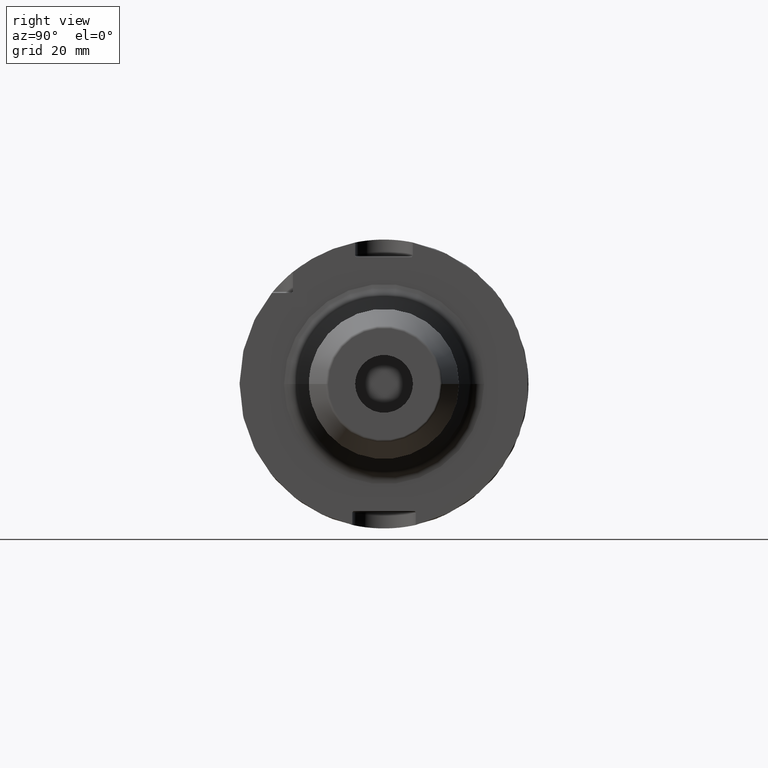
[diagram: clean part render]
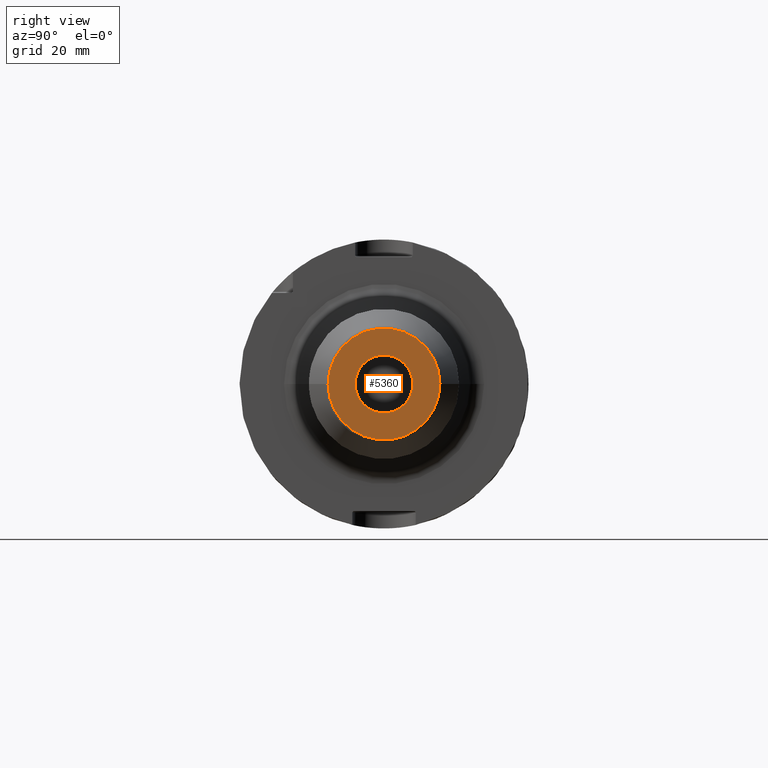
[diagram: same view with one face highlighted and labeled with its STEP entity id]
A machine part, right view. The second image highlights one B-rep face of the part: STEP entity #5360.
In plain terms, the highlighted planar face has unit normal (1, 0, 0).
Its self-contained STEP definition (entity closure, byte-faithful):
#1984=CARTESIAN_POINT('',(1.6E2,0.E0,0.E0));
#1985=DIRECTION('',(-1.E0,0.E0,0.E0));
#1986=DIRECTION('',(0.E0,1.E0,0.E0));
#1987=AXIS2_PLACEMENT_3D('',#1984,#1985,#1986);
#1989=CARTESIAN_POINT('',(1.6E2,0.E0,0.E0));
#1990=DIRECTION('',(-1.E0,0.E0,0.E0));
#1991=DIRECTION('',(0.E0,-1.E0,0.E0));
#1992=AXIS2_PLACEMENT_3D('',#1989,#1990,#1991);
#1994=CARTESIAN_POINT('',(1.6E2,0.E0,0.E0));
#1995=DIRECTION('',(1.E0,0.E0,0.E0));
#1996=DIRECTION('',(0.E0,1.E0,0.E0));
#1997=AXIS2_PLACEMENT_3D('',#1994,#1995,#1996);
#1999=CARTESIAN_POINT('',(1.6E2,0.E0,0.E0));
#2000=DIRECTION('',(1.E0,0.E0,0.E0));
#2001=DIRECTION('',(0.E0,-1.E0,0.E0));
#2002=AXIS2_PLACEMENT_3D('',#1999,#2000,#2001);
#3317=CARTESIAN_POINT('',(1.6E2,1.E1,0.E0));
#3318=VERTEX_POINT('',#3317);
#3331=CARTESIAN_POINT('',(1.6E2,1.936292973919E1,0.E0));
#3332=CARTESIAN_POINT('',(1.6E2,-1.936292973919E1,-4.773689082674E-14));
#3333=VERTEX_POINT('',#3331);
#3334=VERTEX_POINT('',#3332);
#3335=CARTESIAN_POINT('',(1.6E2,-1.E1,0.E0));
#3336=VERTEX_POINT('',#3335);
#5345=CARTESIAN_POINT('',(1.6E2,0.E0,0.E0));
#5346=DIRECTION('',(1.E0,0.E0,0.E0));
#5347=DIRECTION('',(0.E0,-1.E0,0.E0));
#5348=AXIS2_PLACEMENT_3D('',#5345,#5346,#5347);
#5349=PLANE('',#5348);
#5350=ORIENTED_EDGE('',*,*,#5339,.T.);
#5351=ORIENTED_EDGE('',*,*,#5325,.T.);
#5352=EDGE_LOOP('',(#5350,#5351));
#5353=FACE_OUTER_BOUND('',#5352,.F.);
#5355=ORIENTED_EDGE('',*,*,#5354,.T.);
#5357=ORIENTED_EDGE('',*,*,#5356,.T.);
#5358=EDGE_LOOP('',(#5355,#5357));
#5359=FACE_BOUND('',#5358,.F.);
#5360=ADVANCED_FACE('',(#5353,#5359),#5349,.T.);
#1988=CIRCLE('',#1987,1.936292973919E1);
#1993=CIRCLE('',#1992,1.936292973919E1);
#1998=CIRCLE('',#1997,1.E1);
#2003=CIRCLE('',#2002,1.E1);
#5325=EDGE_CURVE('',#3334,#3333,#1993,.T.);
#5339=EDGE_CURVE('',#3333,#3334,#1988,.T.);
#5354=EDGE_CURVE('',#3318,#3336,#1998,.T.);
#5356=EDGE_CURVE('',#3336,#3318,#2003,.T.);